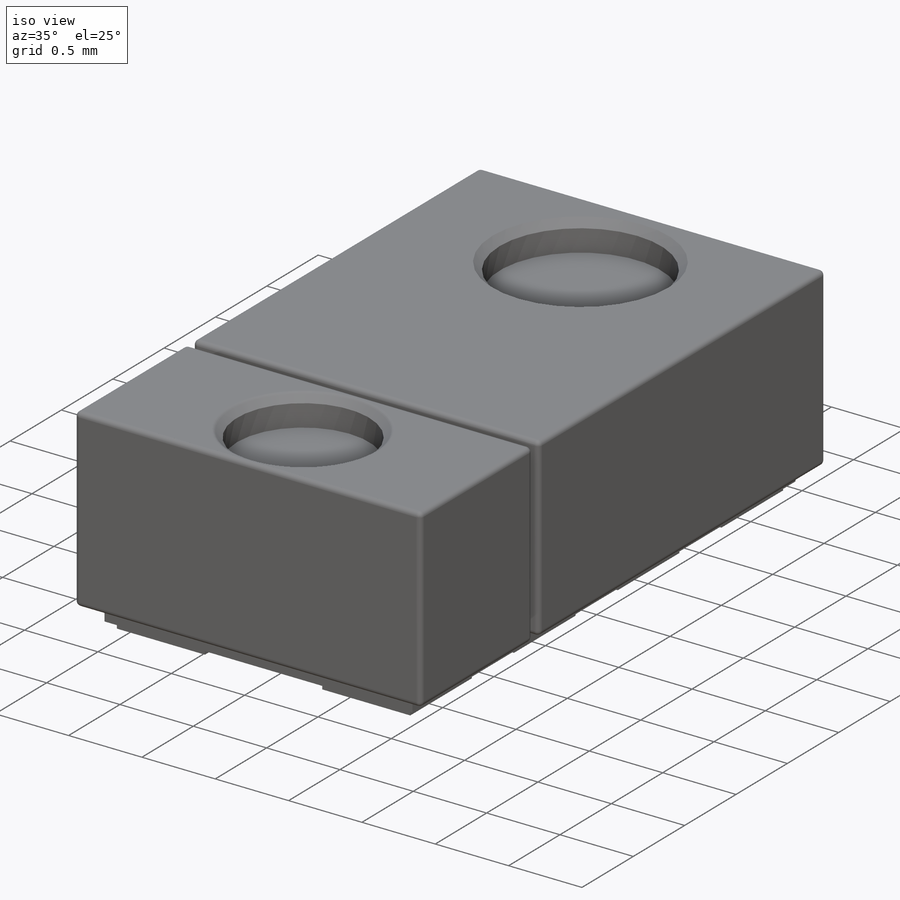
[diagram: iso view]
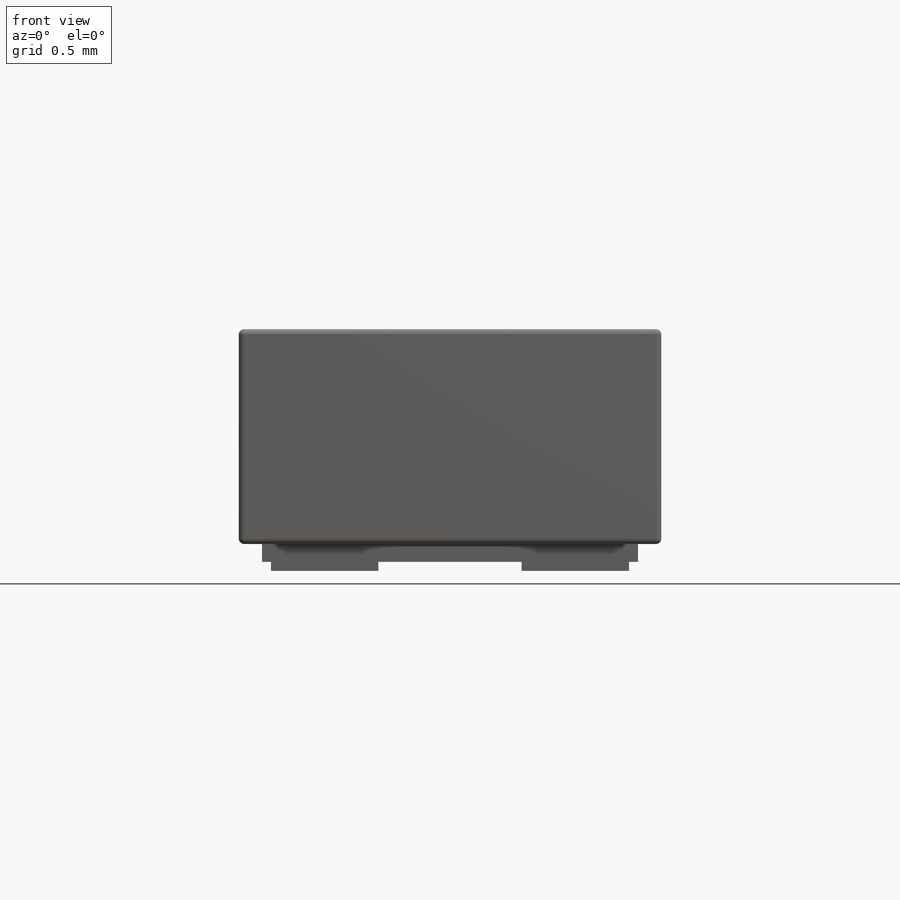
[diagram: front view]
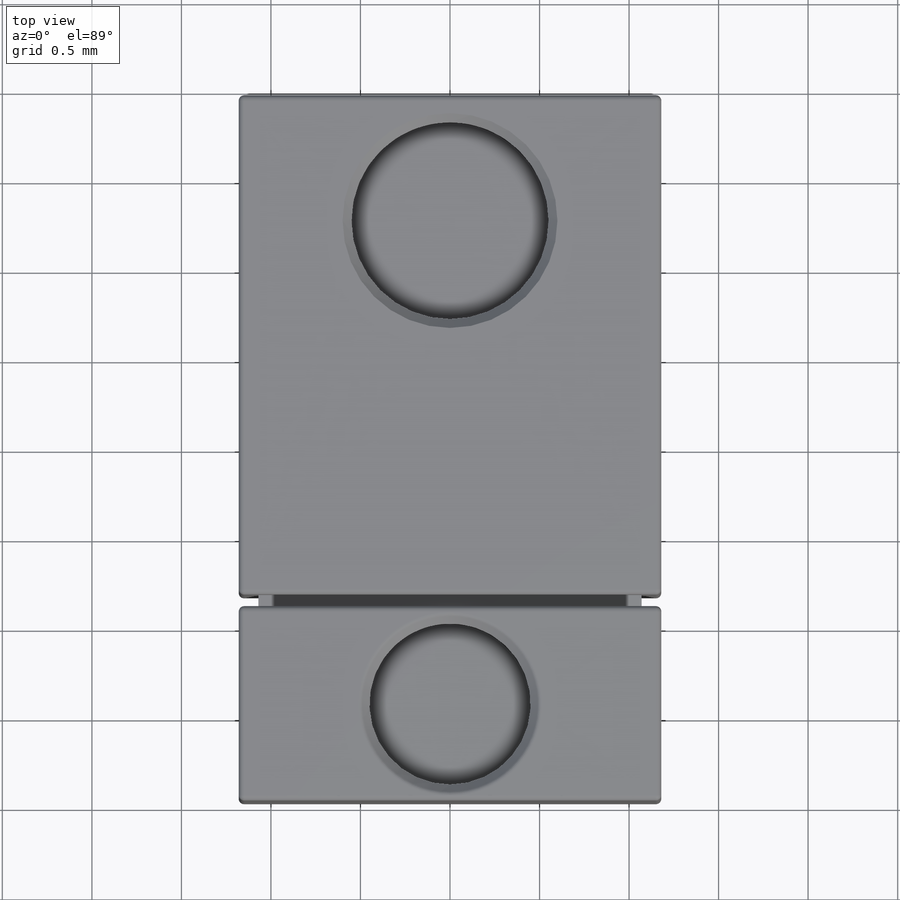
[diagram: top view]
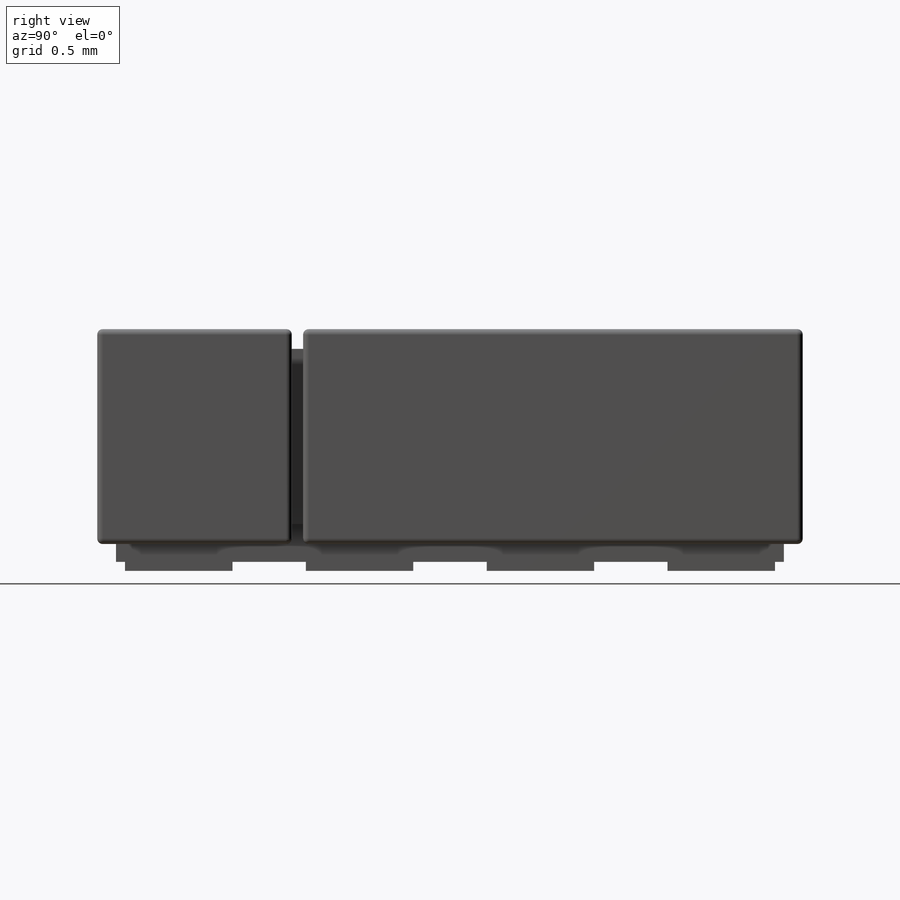
[diagram: right view]
SOLIDWORKS PART (.sldprt)
format: sldprt  version: not decoded by parser v0  size: 394,752 bytes
history: native  units: mm
features: sketch x8, cut_extrude x5, extrude x3, material x1, chamfer x1, fillet x1 (+13 scaffold rows collapsed)
feature tree (32):
  scaffold x13  (default folders/planes/origin — collapsed)
  material  "Material <not specified>"
  sketch  "Sketch1"  dims[D1=3.94mm D2=2.36mm]
  extrude  "Boss-Extrude1"  Depth=1.2mm
  sketch  "Sketch2"  dims[D1=2.1mm D2=3.73mm]
  extrude  "Boss-Extrude2"  Depth=0.1mm
  sketch  "Sketch3"  dims[D1=0.6mm D2=0.6mm D3=0.05mm D4=0.05mm D5=0.05mm]
  extrude  "Boss-Extrude3"  Depth=0.05mm
  sketch  "Sketch4"  dims[D3=1.1mm D4=0.9mm D1=0.54mm D2=2.7mm]
  cut_extrude  "Cut-Extrude1"  Depth=0.2mm
  chamfer  "Chamfer1"  Distance=0.05mm Angle=45deg
  sketch  "Sketch5"  dims[c1.D1=1.05mm c1.D2=1.97mm c2.D1=1.15mm]
  sketch  "Sketch8"
  sketch  "Sketch9"
  sketch  "Sketch10"
  cut_extrude  "Cut-Extrude3"  Depth=0.11mm
  cut_extrude  "Cut-Extrude4"  Depth=0.11mm
  cut_extrude  "Cut-Extrude5"  Depth=0.11mm
  cut_extrude  "Cut-Extrude6"  Depth=0.11mm
  fillet  "Fillet1"  Radius=0.03mm
decode coverage: 15 of 18 modeling features carry decoded parameters
note: suppression state not decoded; provenance and decode notes live in map.json
